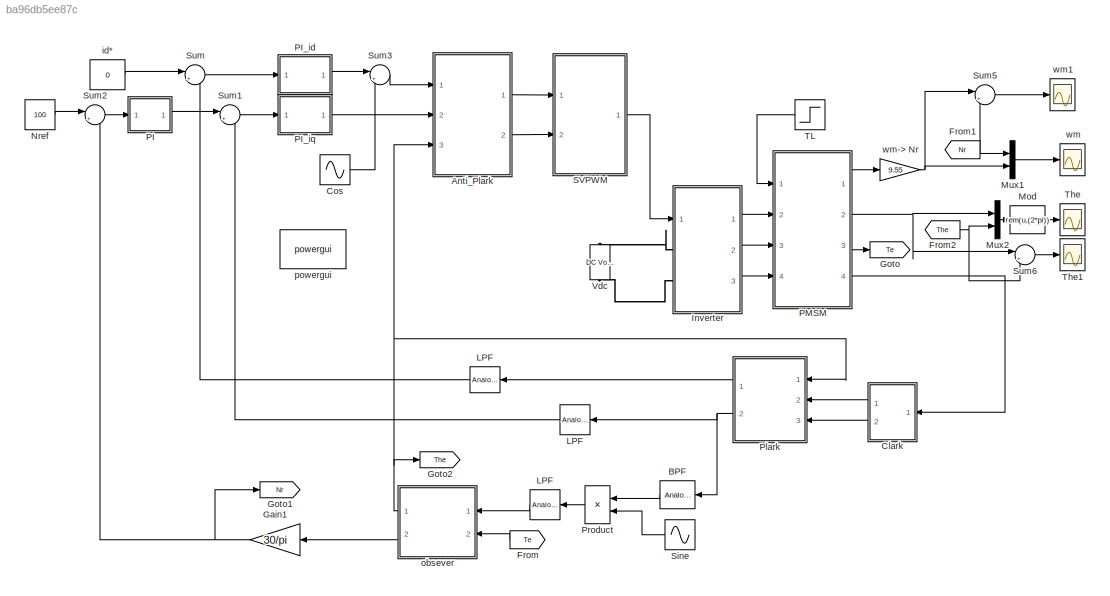
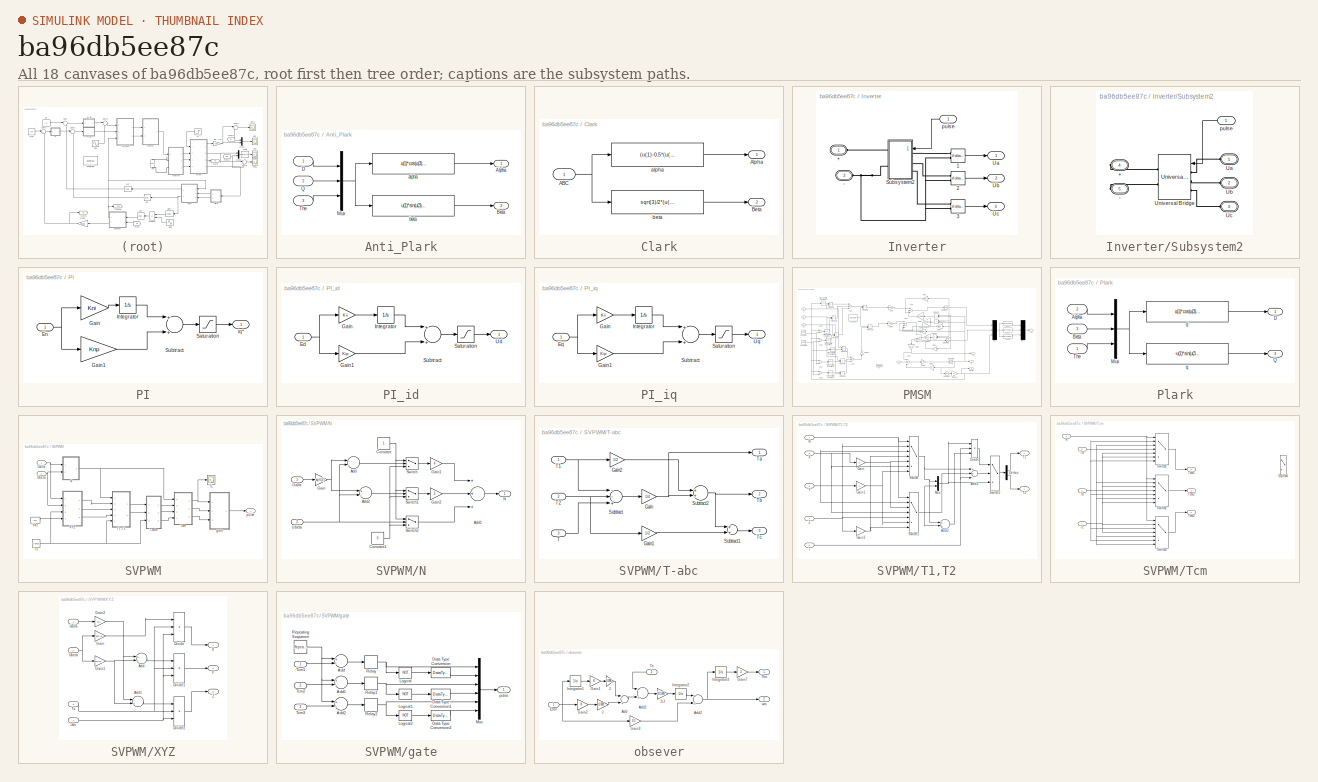
[diagram: thumbnail index - all 18 canvases of the model, root first then tree order]
MODEL slx_ba96db5ee87c
KIND model
BLOCK [Reference]  LPF  REF=dsparch4/Analog
Filter Design
  N = 1
  Ports = [1, 1]
  Rp = 2
  Rs = 40
  SourceBlock = dsparch4/Analog\nFilter Design
  SourceType = Analog Filter Design
  Whi = 80
  Wlo = 942
  filttype = Lowpass
  method = Butterworth
BLOCK [SubSystem] Anti_Plark
  Ports = [3, 2]
  RequestExecContextInheritance = off
BLOCK [Outport] Anti_Plark/Alpha
  IconDisplay = Port number
BLOCK [Outport] Anti_Plark/Beta
  IconDisplay = Port number
  Port = 2
BLOCK [Inport] Anti_Plark/D
  IconDisplay = Port number
BLOCK [Mux] Anti_Plark/Mux
  DisplayOption = bar
  Inputs = 3
  Ports = [3, 1]
BLOCK [Inport] Anti_Plark/Q
  IconDisplay = Port number
  Port = 2
BLOCK [Inport] Anti_Plark/The
  IconDisplay = Port number
  Port = 3
BLOCK [Fcn] Anti_Plark/alpha
  Expr = u(1)*cos(u(3))-u(2)*sin(u(3))
BLOCK [Fcn] Anti_Plark/beta
  Expr = u(1)*sin(u(3))+u(2)*cos(u(3))
BLOCK [Reference] BPF  REF=dsparch4/Analog
Filter Design
  N = 2
  Ports = [1, 1]
  Rp = 2
  Rs = 40
  SourceBlock = dsparch4/Analog\nFilter Design
  SourceType = Analog Filter Design
  Whi = 6360
  Wlo = 6200
  filttype = Bandpass
  method = Butterworth
BLOCK [SubSystem] Clark
  Ports = [1, 2]
  RequestExecContextInheritance = off
BLOCK [Inport] Clark/ABC
  IconDisplay = Port number
BLOCK [Outport] Clark/Alpha
  IconDisplay = Port number
BLOCK [Outport] Clark/Beta
  IconDisplay = Port number
  Port = 2
BLOCK [Fcn] Clark/alpha
  Expr = (u(1)-0.5*(u(2)+u(3)))*2/3
BLOCK [Fcn] Clark/beta
  Expr = sqrt(3)/2*(u(2)-u(3))*2/3
BLOCK [Sin] Cos
  Amplitude = 20
  Frequency = 6280
  Phase = pi/2
  Ports = [0, 1]
  SampleTime = 0
BLOCK [From] From
  GotoTag = Te
BLOCK [From] From1
  GotoTag = Nr
BLOCK [From] From2
  GotoTag = The
BLOCK [Gain] Gain1
  Gain = 30/pi
  OutDataTypeStr = Inherit: Inherit via internal rule
  ParamDataTypeStr = Inherit: Inherit via internal rule
  SaturateOnIntegerOverflow = off
BLOCK [Goto] Goto
  GotoTag = Te
BLOCK [Goto] Goto1
  GotoTag = Nr
BLOCK [Goto] Goto2
  GotoTag = The
BLOCK [SubSystem] Inverter
  Ports = [1, 3, 0, 0, 0, 2]
  RequestExecContextInheritance = off
BLOCK [PMIOPort] Inverter/+
  Port = 1
  Side = Left
  Tag = PMCPort
BLOCK [PMIOPort] Inverter/-
  Port = 2
  Side = Left
  Tag = PMCPort
BLOCK [Reference] Inverter/1  REF=powerlib/Measurements/Voltage Measurement
  OutputType = Complex
  PSBequivalent = 0
  PhasorSimulation = off
  Ports = [0, 1, 0, 0, 0, 2]
  SourceBlock = powerlib/Measurements/Voltage Measurement
  SourceType = Voltage Measurement
BLOCK [Reference] Inverter/2  REF=powerlib/Measurements/Voltage Measurement
  OutputType = Complex
  PSBequivalent = 0
  PhasorSimulation = off
  Ports = [0, 1, 0, 0, 0, 2]
  SourceBlock = powerlib/Measurements/Voltage Measurement
  SourceType = Voltage Measurement
BLOCK [Reference] Inverter/3  REF=powerlib/Measurements/Voltage Measurement
  OutputType = Complex
  PSBequivalent = 0
  PhasorSimulation = off
  Ports = [0, 1, 0, 0, 0, 2]
  SourceBlock = powerlib/Measurements/Voltage Measurement
  SourceType = Voltage Measurement
BLOCK [SubSystem] Inverter/Subsystem2
  Ports = [1, 0, 0, 0, 0, 3, 2]
  RequestExecContextInheritance = off
BLOCK [PMIOPort] Inverter/Subsystem2/+
  Port = 4
  Side = Right
  Tag = PMCPort
BLOCK [PMIOPort] Inverter/Subsystem2/-
  Port = 5
  Side = Right
  Tag = PMCPort
BLOCK [PMIOPort] Inverter/Subsystem2/Ua
  Port = 1
  Side = Left
  Tag = PMCPort
BLOCK [PMIOPort] Inverter/Subsystem2/Ub
  Port = 2
  Side = Left
  Tag = PMCPort
BLOCK [PMIOPort] Inverter/Subsystem2/Uc
  Port = 3
  Side = Left
  Tag = PMCPort
BLOCK [Reference] Inverter/Subsystem2/Universal Bridge  REF=powerlib/Power
Electronics/Universal Bridge
  Arms = 3
  Device = IGBT / Diodes
  ForwardVoltage = 0
  ForwardVoltages = [  0  0  ]
  GTOparameters = [ 10e-6 , 20e-6 ]
  IGBTparameters = [ 1e-6 , 2e-6 ]
  Lon = 0
  Measurements = None
  Measurements_2 = None
  Ports = [1, 0, 0, 0, 0, 3, 2]
  Ron = 1e-3
  SnubberCapacitance = inf
  SnubberResistance = 1e5
  SourceBlock = powerlib/Power\nElectronics/Universal Bridge
  SourceType = Universal Bridge
  converterType = Rectifier
BLOCK [Inport] Inverter/Subsystem2/pulse
  IconDisplay = Port number
BLOCK [Outport] Inverter/Ua
  IconDisplay = Port number
BLOCK [Outport] Inverter/Ub
  IconDisplay = Port number
  Port = 2
BLOCK [Outport] Inverter/Uc
  IconDisplay = Port number
  Port = 3
BLOCK [Inport] Inverter/pulse
  IconDisplay = Port number
BLOCK [Reference] LPF  REF=dsparch4/Analog
Filter Design
  N = 1
  Ports = [1, 1]
  Rp = 2
  Rs = 40
  SourceBlock = dsparch4/Analog\nFilter Design
  SourceType = Analog Filter Design
  Whi = 80
  Wlo = 942
  filttype = Lowpass
  method = Butterworth
BLOCK [Reference] LPF   REF=dsparch4/Analog
Filter Design
  N = 1
  Ports = [1, 1]
  Rp = 2
  Rs = 40
  SourceBlock = dsparch4/Analog\nFilter Design
  SourceType = Analog Filter Design
  Whi = 80
  Wlo = 942
  filttype = Lowpass
  method = Butterworth
BLOCK [Fcn] Mod
  Expr = rem(u,(2*pi))
BLOCK [Mux] Mux1
  DisplayOption = bar
  Inputs = 2
  Ports = [2, 1]
BLOCK [Mux] Mux2
  DisplayOption = bar
  Inputs = 2
  Ports = [2, 1]
BLOCK [Constant] Nref
  Value = 100
BLOCK [SubSystem] PI
  Ports = [1, 1]
  RequestExecContextInheritance = off
BLOCK [Inport] PI/En
  IconDisplay = Port number
BLOCK [Gain] PI/Gain
  Gain = Kni
  OutDataTypeStr = Inherit: Inherit via internal rule
  ParamDataTypeStr = Inherit: Inherit via internal rule
  SaturateOnIntegerOverflow = off
BLOCK [Gain] PI/Gain1
  Gain = Knp
  OutDataTypeStr = Inherit: Inherit via internal rule
  ParamDataTypeStr = Inherit: Inherit via internal rule
  SaturateOnIntegerOverflow = off
BLOCK [Integrator] PI/Integrator
  Ports = [1, 1]
BLOCK [Saturate] PI/Saturation
  InputPortMap = u0
  LowerLimit = -50
  Ports = [1, 1]
  UpperLimit = 50
BLOCK [Sum] PI/Subtract
  InputSameDT = off
  OutDataTypeStr = Inherit: Inherit via internal rule
  Ports = [2, 1]
  SaturateOnIntegerOverflow = off
BLOCK [Outport] PI/iq*
  IconDisplay = Port number
BLOCK [SubSystem] PI_id
  Ports = [1, 1]
  RequestExecContextInheritance = off
BLOCK [Inport] PI_id/Ed
  IconDisplay = Port number
BLOCK [Gain] PI_id/Gain
  Gain = Kii
  OutDataTypeStr = Inherit: Inherit via internal rule
  ParamDataTypeStr = Inherit: Inherit via internal rule
  SaturateOnIntegerOverflow = off
BLOCK [Gain] PI_id/Gain1
  Gain = Kip
  OutDataTypeStr = Inherit: Inherit via internal rule
  ParamDataTypeStr = Inherit: Inherit via internal rule
  SaturateOnIntegerOverflow = off
BLOCK [Integrator] PI_id/Integrator
  Ports = [1, 1]
BLOCK [Saturate] PI_id/Saturation
  InputPortMap = u0
  LowerLimit = -10
  Ports = [1, 1]
  UpperLimit = 10
BLOCK [Sum] PI_id/Subtract
  InputSameDT = off
  OutDataTypeStr = Inherit: Inherit via internal rule
  Ports = [2, 1]
  SaturateOnIntegerOverflow = off
BLOCK [Outport] PI_id/Ud
  IconDisplay = Port number
BLOCK [SubSystem] PI_iq
  Ports = [1, 1]
  RequestExecContextInheritance = off
BLOCK [Inport] PI_iq/Eq
  IconDisplay = Port number
BLOCK [Gain] PI_iq/Gain
  Gain = Kii
  OutDataTypeStr = Inherit: Inherit via internal rule
  ParamDataTypeStr = Inherit: Inherit via internal rule
  SaturateOnIntegerOverflow = off
BLOCK [Gain] PI_iq/Gain1
  Gain = Kip
  OutDataTypeStr = Inherit: Inherit via internal rule
  ParamDataTypeStr = Inherit: Inherit via internal rule
  SaturateOnIntegerOverflow = off
BLOCK [Integrator] PI_iq/Integrator
  Ports = [1, 1]
BLOCK [Saturate] PI_iq/Saturation
  InputPortMap = u0
  LowerLimit = -100
  Ports = [1, 1]
  UpperLimit = 100
BLOCK [Sum] PI_iq/Subtract
  InputSameDT = off
  OutDataTypeStr = Inherit: Inherit via internal rule
  Ports = [2, 1]
  SaturateOnIntegerOverflow = off
BLOCK [Outport] PI_iq/Uq
  IconDisplay = Port number
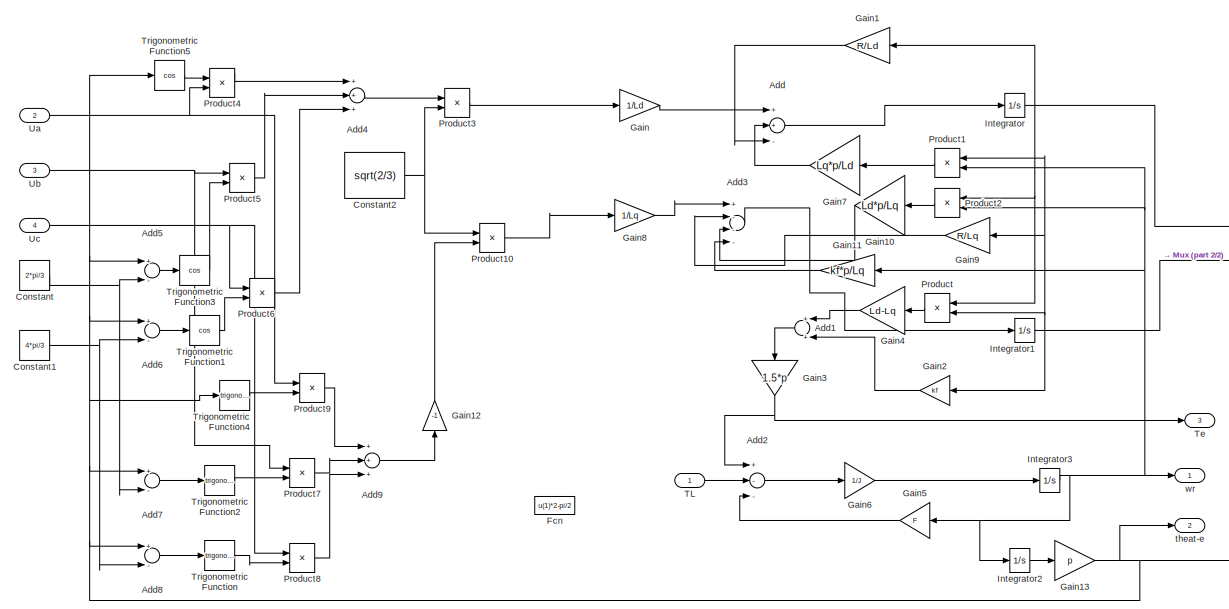
[diagram: PMSM - part 1/2, most of the canvas]
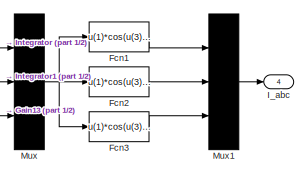
[diagram: PMSM - part 2/2, middle right region]
BLOCK [SubSystem] PMSM
  Ports = [4, 4]
  RequestExecContextInheritance = off
BLOCK [Sum] PMSM/Add
  InputSameDT = off
  Inputs = ++-
  OutDataTypeStr = Inherit: Inherit via internal rule
  Ports = [3, 1]
  SaturateOnIntegerOverflow = off
BLOCK [Sum] PMSM/Add1
  InputSameDT = off
  OutDataTypeStr = Inherit: Inherit via internal rule
  Ports = [2, 1]
  SaturateOnIntegerOverflow = off
BLOCK [Sum] PMSM/Add2
  InputSameDT = off
  Inputs = +--
  OutDataTypeStr = Inherit: Inherit via internal rule
  Ports = [3, 1]
  SaturateOnIntegerOverflow = off
BLOCK [Sum] PMSM/Add3
  InputSameDT = off
  Inputs = +---
  OutDataTypeStr = Inherit: Inherit via internal rule
  Ports = [4, 1]
  SaturateOnIntegerOverflow = off
BLOCK [Sum] PMSM/Add4
  InputSameDT = off
  Inputs = +++
  OutDataTypeStr = Inherit: Inherit via internal rule
  Ports = [3, 1]
  SaturateOnIntegerOverflow = off
BLOCK [Sum] PMSM/Add5
  InputSameDT = off
  Inputs = +-
  OutDataTypeStr = Inherit: Inherit via internal rule
  Ports = [2, 1]
  SaturateOnIntegerOverflow = off
BLOCK [Sum] PMSM/Add6
  InputSameDT = off
  Inputs = +-
  OutDataTypeStr = Inherit: Inherit via internal rule
  Ports = [2, 1]
  SaturateOnIntegerOverflow = off
BLOCK [Sum] PMSM/Add7
  InputSameDT = off
  Inputs = +-
  OutDataTypeStr = Inherit: Inherit via internal rule
  Ports = [2, 1]
  SaturateOnIntegerOverflow = off
BLOCK [Sum] PMSM/Add8
  InputSameDT = off
  Inputs = +-
  OutDataTypeStr = Inherit: Inherit via internal rule
  Ports = [2, 1]
  SaturateOnIntegerOverflow = off
BLOCK [Sum] PMSM/Add9
  InputSameDT = off
  Inputs = +++
  OutDataTypeStr = Inherit: Inherit via internal rule
  Ports = [3, 1]
  SaturateOnIntegerOverflow = off
BLOCK [Constant] PMSM/Constant
  Value = 2*pi/3
BLOCK [Constant] PMSM/Constant1
  Value = 4*pi/3
BLOCK [Constant] PMSM/Constant2
  Value = sqrt(2/3)
BLOCK [Fcn] PMSM/Fcn
  Expr = u(1)*2-pi/2
BLOCK [Fcn] PMSM/Fcn1
  Expr = u(1)*cos(u(3))-u(2)*sin(u(3))
BLOCK [Fcn] PMSM/Fcn2
  Expr = u(1)*cos(u(3)-((2*pi)/3))-u(2)*sin(u(3)-((2*pi)/3))
BLOCK [Fcn] PMSM/Fcn3
  Expr = u(1)*cos(u(3)-((4*pi)/3))-u(2)*sin(u(3)-((4*pi)/3))
BLOCK [Gain] PMSM/Gain
  Gain = 1/Ld
  OutDataTypeStr = Inherit: Inherit via internal rule
  ParamDataTypeStr = Inherit: Inherit via internal rule
  SaturateOnIntegerOverflow = off
BLOCK [Gain] PMSM/Gain1
  Gain = R/Ld
  OutDataTypeStr = Inherit: Inherit via internal rule
  ParamDataTypeStr = Inherit: Inherit via internal rule
  SaturateOnIntegerOverflow = off
BLOCK [Gain] PMSM/Gain10
  Gain = Ld*p/Lq
  OutDataTypeStr = Inherit: Inherit via internal rule
  ParamDataTypeStr = Inherit: Inherit via internal rule
  SaturateOnIntegerOverflow = off
BLOCK [Gain] PMSM/Gain11
  Gain = kf*p/Lq
  OutDataTypeStr = Inherit: Inherit via internal rule
  ParamDataTypeStr = Inherit: Inherit via internal rule
  SaturateOnIntegerOverflow = off
BLOCK [Gain] PMSM/Gain12
  Gain = -1
  OutDataTypeStr = Inherit: Inherit via internal rule
  ParamDataTypeStr = Inherit: Inherit via internal rule
  SaturateOnIntegerOverflow = off
BLOCK [Gain] PMSM/Gain13
  Gain = p
  OutDataTypeStr = Inherit: Inherit via internal rule
  ParamDataTypeStr = Inherit: Inherit via internal rule
  SaturateOnIntegerOverflow = off
BLOCK [Gain] PMSM/Gain2
  Gain = kf
  OutDataTypeStr = Inherit: Inherit via internal rule
  ParamDataTypeStr = Inherit: Inherit via internal rule
  SaturateOnIntegerOverflow = off
BLOCK [Gain] PMSM/Gain3
  Gain = 1.5*p
  OutDataTypeStr = Inherit: Inherit via internal rule
  ParamDataTypeStr = Inherit: Inherit via internal rule
  SaturateOnIntegerOverflow = off
BLOCK [Gain] PMSM/Gain4
  Gain = Ld-Lq
  OutDataTypeStr = Inherit: Inherit via internal rule
  ParamDataTypeStr = Inherit: Inherit via internal rule
  SaturateOnIntegerOverflow = off
BLOCK [Gain] PMSM/Gain5
  Gain = F
  OutDataTypeStr = Inherit: Inherit via internal rule
  ParamDataTypeStr = Inherit: Inherit via internal rule
  SaturateOnIntegerOverflow = off
BLOCK [Gain] PMSM/Gain6
  Gain = 1/J
  OutDataTypeStr = Inherit: Inherit via internal rule
  ParamDataTypeStr = Inherit: Inherit via internal rule
  SaturateOnIntegerOverflow = off
BLOCK [Gain] PMSM/Gain7
  Gain = Lq*p/Ld
  OutDataTypeStr = Inherit: Inherit via internal rule
  ParamDataTypeStr = Inherit: Inherit via internal rule
  SaturateOnIntegerOverflow = off
BLOCK [Gain] PMSM/Gain8
  Gain = 1/Lq
  OutDataTypeStr = Inherit: Inherit via internal rule
  ParamDataTypeStr = Inherit: Inherit via internal rule
  SaturateOnIntegerOverflow = off
BLOCK [Gain] PMSM/Gain9
  Gain = R/Lq
  OutDataTypeStr = Inherit: Inherit via internal rule
  ParamDataTypeStr = Inherit: Inherit via internal rule
  SaturateOnIntegerOverflow = off
BLOCK [Outport] PMSM/I_abc
  IconDisplay = Port number
  Port = 4
BLOCK [Integrator] PMSM/Integrator
  Ports = [1, 1]
BLOCK [Integrator] PMSM/Integrator1
  Ports = [1, 1]
BLOCK [Integrator] PMSM/Integrator2
  Ports = [1, 1]
BLOCK [Integrator] PMSM/Integrator3
  Ports = [1, 1]
BLOCK [Mux] PMSM/Mux
  Inputs = 3
  Ports = [3, 1]
BLOCK [Mux] PMSM/Mux1
  Inputs = 3
  Ports = [3, 1]
BLOCK [Product] PMSM/Product
  InputSameDT = off
  OutDataTypeStr = Inherit: Inherit via internal rule
  Ports = [2, 1]
  SaturateOnIntegerOverflow = off
BLOCK [Product] PMSM/Product1
  InputSameDT = off
  OutDataTypeStr = Inherit: Inherit via internal rule
  Ports = [2, 1]
  SaturateOnIntegerOverflow = off
BLOCK [Product] PMSM/Product10
  InputSameDT = off
  OutDataTypeStr = Inherit: Inherit via internal rule
  Ports = [2, 1]
  SaturateOnIntegerOverflow = off
BLOCK [Product] PMSM/Product2
  InputSameDT = off
  OutDataTypeStr = Inherit: Inherit via internal rule
  Ports = [2, 1]
  SaturateOnIntegerOverflow = off
BLOCK [Product] PMSM/Product3
  InputSameDT = off
  OutDataTypeStr = Inherit: Inherit via internal rule
  Ports = [2, 1]
  SaturateOnIntegerOverflow = off
BLOCK [Product] PMSM/Product4
  InputSameDT = off
  OutDataTypeStr = Inherit: Inherit via internal rule
  Ports = [2, 1]
  SaturateOnIntegerOverflow = off
BLOCK [Product] PMSM/Product5
  InputSameDT = off
  OutDataTypeStr = Inherit: Inherit via internal rule
  Ports = [2, 1]
  SaturateOnIntegerOverflow = off
BLOCK [Product] PMSM/Product6
  InputSameDT = off
  OutDataTypeStr = Inherit: Inherit via internal rule
  Ports = [2, 1]
  SaturateOnIntegerOverflow = off
BLOCK [Product] PMSM/Product7
  InputSameDT = off
  OutDataTypeStr = Inherit: Inherit via internal rule
  Ports = [2, 1]
  SaturateOnIntegerOverflow = off
BLOCK [Product] PMSM/Product8
  InputSameDT = off
  OutDataTypeStr = Inherit: Inherit via internal rule
  Ports = [2, 1]
  SaturateOnIntegerOverflow = off
BLOCK [Product] PMSM/Product9
  InputSameDT = off
  OutDataTypeStr = Inherit: Inherit via internal rule
  Ports = [2, 1]
  SaturateOnIntegerOverflow = off
BLOCK [Inport] PMSM/TL
  IconDisplay = Port number
BLOCK [Outport] PMSM/Te
  IconDisplay = Port number
  Port = 3
BLOCK [Trigonometry] PMSM/Trigonometric Function
  Ports = [1, 1]
BLOCK [Trigonometry] PMSM/Trigonometric Function1
  Operator = cos
  Ports = [1, 1]
BLOCK [Trigonometry] PMSM/Trigonometric Function2
  Ports = [1, 1]
BLOCK [Trigonometry] PMSM/Trigonometric Function3
  Operator = cos
  Ports = [1, 1]
BLOCK [Trigonometry] PMSM/Trigonometric Function4
  Ports = [1, 1]
BLOCK [Trigonometry] PMSM/Trigonometric Function5
  Operator = cos
  Ports = [1, 1]
BLOCK [Inport] PMSM/Ua
  IconDisplay = Port number
  Port = 2
BLOCK [Inport] PMSM/Ub
  IconDisplay = Port number
  Port = 3
BLOCK [Inport] PMSM/Uc
  IconDisplay = Port number
  Port = 4
BLOCK [Outport] PMSM/theat-e
  IconDisplay = Port number
  Port = 2
BLOCK [Outport] PMSM/wr
  IconDisplay = Port number
BLOCK [SubSystem] Plark
  Ports = [3, 2]
  RequestExecContextInheritance = off
BLOCK [Inport] Plark/Alpha
  IconDisplay = Port number
  Port = 2
BLOCK [Inport] Plark/Beta
  IconDisplay = Port number
  Port = 3
BLOCK [Outport] Plark/D
  IconDisplay = Port number
BLOCK [Mux] Plark/Mux
  DisplayOption = bar
  Inputs = 3
  Ports = [3, 1]
BLOCK [Outport] Plark/Q
  IconDisplay = Port number
  Port = 2
BLOCK [Inport] Plark/The
  IconDisplay = Port number
BLOCK [Fcn] Plark/d
  Expr = u(1)*cos(u(3))+u(2)*sin(u(3))
BLOCK [Fcn] Plark/q
  Expr = -u(1)*sin(u(3))+u(2)*cos(u(3))
BLOCK [Product] Product
  InputSameDT = off
  OutDataTypeStr = Inherit: Inherit via internal rule
  Ports = [2, 1]
  RndMeth = Floor
  SaturateOnIntegerOverflow = off
BLOCK [SubSystem] SVPWM
  Ports = [2, 1]
  RequestExecContextInheritance = off
BLOCK [SubSystem] SVPWM/N
  Ports = [2, 1]
  RequestExecContextInheritance = off
BLOCK [Sum] SVPWM/N/Add
  InputSameDT = off
  Inputs = --
  OutDataTypeStr = Inherit: Inherit via internal rule
  Ports = [2, 1]
  SaturateOnIntegerOverflow = off
BLOCK [Sum] SVPWM/N/Add1
  InputSameDT = off
  Inputs = +++
  OutDataTypeStr = Inherit: Inherit via internal rule
  Ports = [3, 1]
  SaturateOnIntegerOverflow = off
BLOCK [Sum] SVPWM/N/Add2
  InputSameDT = off
  Inputs = +-
  OutDataTypeStr = Inherit: Inherit via internal rule
  Ports = [2, 1]
  SaturateOnIntegerOverflow = off
BLOCK [Constant] SVPWM/N/Constant
BLOCK [Constant] SVPWM/N/Constant1
  Value = 0
BLOCK [Gain] SVPWM/N/Gain
  Gain = sqrt(3)
  OutDataTypeStr = Inherit: Inherit via internal rule
  ParamDataTypeStr = Inherit: Inherit via internal rule
  SaturateOnIntegerOverflow = off
BLOCK [Gain] SVPWM/N/Gain1
  Gain = 4
  OutDataTypeStr = Inherit: Inherit via internal rule
  ParamDataTypeStr = Inherit: Inherit via internal rule
  SaturateOnIntegerOverflow = off
BLOCK [Gain] SVPWM/N/Gain2
  Gain = 2
  OutDataTypeStr = Inherit: Inherit via internal rule
  ParamDataTypeStr = Inherit: Inherit via internal rule
  SaturateOnIntegerOverflow = off
BLOCK [Outport] SVPWM/N/N
  IconDisplay = Port number
BLOCK [Switch] SVPWM/N/Switch
  InputSameDT = off
  SaturateOnIntegerOverflow = off
BLOCK [Switch] SVPWM/N/Switch1
  InputSameDT = off
  SaturateOnIntegerOverflow = off
BLOCK [Switch] SVPWM/N/Switch2
  InputSameDT = off
  SaturateOnIntegerOverflow = off
BLOCK [Inport] SVPWM/N/Ualfa
  IconDisplay = Port number
BLOCK [Inport] SVPWM/N/Ubeta
  IconDisplay = Port number
  Port = 2
BLOCK [SubSystem] SVPWM/T-abc
  Ports = [3, 3]
  RequestExecContextInheritance = off
BLOCK [Gain] SVPWM/T-abc/Gain
  Gain = 1/4
  OutDataTypeStr = Inherit: Inherit via internal rule
  ParamDataTypeStr = Inherit: Inherit via internal rule
  SaturateOnIntegerOverflow = off
BLOCK [Gain] SVPWM/T-abc/Gain1
  Gain = 1/2
  OutDataTypeStr = Inherit: Inherit via internal rule
  ParamDataTypeStr = Inherit: Inherit via internal rule
  SaturateOnIntegerOverflow = off
BLOCK [Gain] SVPWM/T-abc/Gain2
  Gain = 1/2
  OutDataTypeStr = Inherit: Inherit via internal rule
  ParamDataTypeStr = Inherit: Inherit via internal rule
  SaturateOnIntegerOverflow = off
BLOCK [Sum] SVPWM/T-abc/Subtract
  InputSameDT = off
  Inputs = --+
  OutDataTypeStr = Inherit: Inherit via internal rule
  Ports = [3, 1]
  SaturateOnIntegerOverflow = off
BLOCK [Sum] SVPWM/T-abc/Subtract1
  InputSameDT = off
  OutDataTypeStr = Inherit: Inherit via internal rule
  Ports = [2, 1]
  SaturateOnIntegerOverflow = off
BLOCK [Sum] SVPWM/T-abc/Subtract2
  InputSameDT = off
  OutDataTypeStr = Inherit: Inherit via internal rule
  Ports = [2, 1]
  SaturateOnIntegerOverflow = off
BLOCK [Inport] SVPWM/T-abc/T
  IconDisplay = Port number
  Port = 3
BLOCK [Inport] SVPWM/T-abc/T1
  IconDisplay = Port number
BLOCK [Inport] SVPWM/T-abc/T2
  IconDisplay = Port number
  Port = 2
BLOCK [Outport] SVPWM/T-abc/Ta
  IconDisplay = Port number
BLOCK [Outport] SVPWM/T-abc/Tb
  IconDisplay = Port number
  Port = 2
BLOCK [Outport] SVPWM/T-abc/Tc
  IconDisplay = Port number
  Port = 3
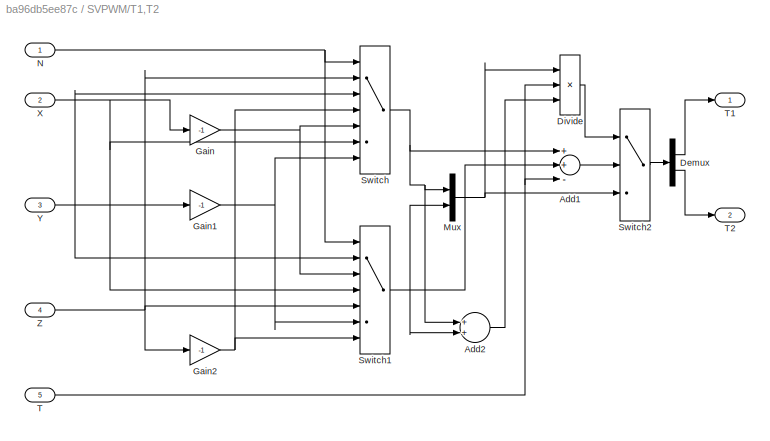
BLOCK [SubSystem] SVPWM/T1,T2
  Ports = [5, 2]
  RequestExecContextInheritance = off
BLOCK [Sum] SVPWM/T1,T2/Add1
  InputSameDT = off
  Inputs = ++-
  OutDataTypeStr = Inherit: Inherit via internal rule
  Ports = [3, 1]
  SaturateOnIntegerOverflow = off
BLOCK [Sum] SVPWM/T1,T2/Add2
  InputSameDT = off
  OutDataTypeStr = Inherit: Inherit via internal rule
  Ports = [2, 1]
  SaturateOnIntegerOverflow = off
BLOCK [Demux] SVPWM/T1,T2/Demux
  DisplayOption = bar
  Outputs = 2
  Ports = [1, 2]
BLOCK [Product] SVPWM/T1,T2/Divide
  InputSameDT = off
  Inputs = **/
  OutDataTypeStr = Inherit: Inherit via internal rule
  Ports = [3, 1]
  RndMeth = Floor
  SaturateOnIntegerOverflow = off
BLOCK [Gain] SVPWM/T1,T2/Gain
  Gain = -1
  OutDataTypeStr = Inherit: Inherit via internal rule
  ParamDataTypeStr = Inherit: Inherit via internal rule
  SaturateOnIntegerOverflow = off
BLOCK [Gain] SVPWM/T1,T2/Gain1
  Gain = -1
  OutDataTypeStr = Inherit: Inherit via internal rule
  ParamDataTypeStr = Inherit: Inherit via internal rule
  SaturateOnIntegerOverflow = off
BLOCK [Gain] SVPWM/T1,T2/Gain2
  Gain = -1
  OutDataTypeStr = Inherit: Inherit via internal rule
  ParamDataTypeStr = Inherit: Inherit via internal rule
  SaturateOnIntegerOverflow = off
BLOCK [Mux] SVPWM/T1,T2/Mux
  DisplayOption = bar
  Inputs = 2
  Ports = [2, 1]
BLOCK [Inport] SVPWM/T1,T2/N
  IconDisplay = Port number
BLOCK [MultiPortSwitch] SVPWM/T1,T2/Switch
  InputSameDT = off
  Inputs = 6
  Ports = [7, 1]
  SaturateOnIntegerOverflow = off
BLOCK [MultiPortSwitch] SVPWM/T1,T2/Switch1
  InputSameDT = off
  Inputs = 6
  Ports = [7, 1]
  SaturateOnIntegerOverflow = off
BLOCK [Switch] SVPWM/T1,T2/Switch2
  InputSameDT = off
  SaturateOnIntegerOverflow = off
BLOCK [Inport] SVPWM/T1,T2/T
  IconDisplay = Port number
  Port = 5
BLOCK [Outport] SVPWM/T1,T2/T1
  IconDisplay = Port number
BLOCK [Outport] SVPWM/T1,T2/T2
  IconDisplay = Port number
  Port = 2
BLOCK [Inport] SVPWM/T1,T2/X
  IconDisplay = Port number
  Port = 2
BLOCK [Inport] SVPWM/T1,T2/Y
  IconDisplay = Port number
  Port = 3
BLOCK [Inport] SVPWM/T1,T2/Z
  IconDisplay = Port number
  Port = 4
BLOCK [Scope] SVPWM/TL
  DataFormat = StructureWithTime
  Floating = off
  LimitDataPoints = off
  NumInputPorts = 1
  Ports = [1]
  SampleTime = 0
  SaveName = ScopeData12
  ShowLegends = off
  YMax = 6.5e-005
  YMin = 3.5e-005
  ZoomMode = yonly
BLOCK [SubSystem] SVPWM/Tcm
  Ports = [4, 3]
  RequestExecContextInheritance = off
BLOCK [Inport] SVPWM/Tcm/N
  IconDisplay = Port number
BLOCK [MultiPortSwitch] SVPWM/Tcm/Switch1
  InputSameDT = off
  Inputs = 6
  Ports = [7, 1]
  SaturateOnIntegerOverflow = off
BLOCK [MultiPortSwitch] SVPWM/Tcm/Switch2
  InputSameDT = off
  Inputs = 6
  Ports = [7, 1]
  SaturateOnIntegerOverflow = off
BLOCK [MultiPortSwitch] SVPWM/Tcm/Switch3
  InputSameDT = off
  Inputs = 6
  Ports = [7, 1]
  SaturateOnIntegerOverflow = off
BLOCK [Switch] SVPWM/Tcm/Switch4
  InputSameDT = off
  SaturateOnIntegerOverflow = off
BLOCK [Inport] SVPWM/Tcm/Ta
  IconDisplay = Port number
  Port = 2
BLOCK [Inport] SVPWM/Tcm/Tb
  IconDisplay = Port number
  Port = 3
BLOCK [Inport] SVPWM/Tcm/Tc
  IconDisplay = Port number
  Port = 4
BLOCK [Outport] SVPWM/Tcm/Tcm1
  IconDisplay = Port number
BLOCK [Outport] SVPWM/Tcm/Tcm2
  IconDisplay = Port number
  Port = 2
BLOCK [Outport] SVPWM/Tcm/Tcm3
  IconDisplay = Port number
  Port = 3
BLOCK [Constant] SVPWM/Ts
  SampleTime = -1
  Value = 0.0002
BLOCK [Inport] SVPWM/Ualfa
  IconDisplay = Port number
BLOCK [Inport] SVPWM/Ubeta
  IconDisplay = Port number
  Port = 2
BLOCK [Constant] SVPWM/Vdc
  Value = 311
BLOCK [SubSystem] SVPWM/XYZ
  Ports = [4, 3]
  RequestExecContextInheritance = off
BLOCK [Sum] SVPWM/XYZ/Add
  InputSameDT = off
  OutDataTypeStr = Inherit: Inherit via internal rule
  Ports = [2, 1]
  SaturateOnIntegerOverflow = off
BLOCK [Sum] SVPWM/XYZ/Add1
  InputSameDT = off
  Inputs = -+
  OutDataTypeStr = Inherit: Inherit via internal rule
  Ports = [2, 1]
  SaturateOnIntegerOverflow = off
BLOCK [Product] SVPWM/XYZ/Divide
  InputSameDT = off
  Inputs = **/
  OutDataTypeStr = Inherit: Inherit via internal rule
  Ports = [3, 1]
  RndMeth = Floor
  SaturateOnIntegerOverflow = off
BLOCK [Product] SVPWM/XYZ/Divide1
  InputSameDT = off
  Inputs = **/
  OutDataTypeStr = Inherit: Inherit via internal rule
  Ports = [3, 1]
  RndMeth = Floor
  SaturateOnIntegerOverflow = off
BLOCK [Product] SVPWM/XYZ/Divide2
  InputSameDT = off
  Inputs = **/
  OutDataTypeStr = Inherit: Inherit via internal rule
  Ports = [3, 1]
  RndMeth = Floor
  SaturateOnIntegerOverflow = off
BLOCK [Gain] SVPWM/XYZ/Gain
  Gain = sqrt(3)
  OutDataTypeStr = Inherit: Inherit via internal rule
  ParamDataTypeStr = Inherit: Inherit via internal rule
  SaturateOnIntegerOverflow = off
BLOCK [Gain] SVPWM/XYZ/Gain1
  Gain = sqrt(3)/2
  OutDataTypeStr = Inherit: Inherit via internal rule
  ParamDataTypeStr = Inherit: Inherit via internal rule
  SaturateOnIntegerOverflow = off
BLOCK [Gain] SVPWM/XYZ/Gain2
  Gain = 3/2
  OutDataTypeStr = Inherit: Inherit via internal rule
  ParamDataTypeStr = Inherit: Inherit via internal rule
  SaturateOnIntegerOverflow = off
BLOCK [Inport] SVPWM/XYZ/Ts
  IconDisplay = Port number
  Port = 3
BLOCK [Inport] SVPWM/XYZ/Ualfa
  IconDisplay = Port number
BLOCK [Inport] SVPWM/XYZ/Ubeta
  IconDisplay = Port number
  Port = 2
BLOCK [Inport] SVPWM/XYZ/Udc
  IconDisplay = Port number
  Port = 4
BLOCK [Outport] SVPWM/XYZ/X
  IconDisplay = Port number
BLOCK [Outport] SVPWM/XYZ/Y
  IconDisplay = Port number
  Port = 2
BLOCK [Outport] SVPWM/XYZ/Z
  IconDisplay = Port number
  Port = 3
BLOCK [SubSystem] SVPWM/gate
  Ports = [3, 1]
  RequestExecContextInheritance = off
BLOCK [Sum] SVPWM/gate/Add
  InputSameDT = off
  Inputs = +-
  OutDataTypeStr = Inherit: Inherit via internal rule
  Ports = [2, 1]
  SaturateOnIntegerOverflow = off
BLOCK [Sum] SVPWM/gate/Add1
  InputSameDT = off
  Inputs = +-
  OutDataTypeStr = Inherit: Inherit via internal rule
  Ports = [2, 1]
  SaturateOnIntegerOverflow = off
BLOCK [Sum] SVPWM/gate/Add2
  InputSameDT = off
  Inputs = +-
  OutDataTypeStr = Inherit: Inherit via internal rule
  Ports = [2, 1]
  SaturateOnIntegerOverflow = off
BLOCK [DataTypeConversion] SVPWM/gate/Data Type Conversion
  OutDataTypeStr = double
  RndMeth = Floor
  SaturateOnIntegerOverflow = off
BLOCK [DataTypeConversion] SVPWM/gate/Data Type Conversion1
  OutDataTypeStr = double
  RndMeth = Floor
  SaturateOnIntegerOverflow = off
BLOCK [DataTypeConversion] SVPWM/gate/Data Type Conversion2
  OutDataTypeStr = double
  RndMeth = Floor
  SaturateOnIntegerOverflow = off
BLOCK [Logic] SVPWM/gate/Logical
  AllPortsSameDT = off
  Operator = NOT
  OutDataTypeStr = boolean
  Ports = [1, 1]
BLOCK [Logic] SVPWM/gate/Logical1
  AllPortsSameDT = off
  Operator = NOT
  OutDataTypeStr = boolean
  Ports = [1, 1]
BLOCK [Logic] SVPWM/gate/Logical2
  AllPortsSameDT = off
  Operator = NOT
  OutDataTypeStr = boolean
  Ports = [1, 1]
BLOCK [Mux] SVPWM/gate/Mux
  DisplayOption = bar
  Inputs = 6
  Ports = [6, 1]
BLOCK [Relay] SVPWM/gate/Relay
BLOCK [Relay] SVPWM/gate/Relay1
BLOCK [Relay] SVPWM/gate/Relay2
BLOCK [Reference] SVPWM/gate/Repeating Sequence  REF=simulink/Sources/Repeating
Sequence
  Ports = [0, 1]
  SourceBlock = simulink/Sources/Repeating\nSequence
  SourceType = Repeating table
  rep_seq_t = [0 0.00005 0.0001]
  rep_seq_y = [0 0.0001 0]
BLOCK [Inport] SVPWM/gate/Tcm1
  IconDisplay = Port number
BLOCK [Inport] SVPWM/gate/Tcm2
  IconDisplay = Port number
  Port = 2
BLOCK [Inport] SVPWM/gate/Tcm3
  IconDisplay = Port number
  Port = 3
BLOCK [Outport] SVPWM/gate/pulse
  IconDisplay = Port number
BLOCK [Outport] SVPWM/pulse
  IconDisplay = Port number
BLOCK [Sin] Sine 
  Frequency = 6280
  Ports = [0, 1]
  SampleTime = 0
BLOCK [Sum] Sum
  IconShape = round
  InputSameDT = off
  Inputs = |+-
  OutDataTypeStr = Inherit: Inherit via internal rule
  Ports = [2, 1]
  SaturateOnIntegerOverflow = off
BLOCK [Sum] Sum1
  IconShape = round
  InputSameDT = off
  Inputs = |+-
  OutDataTypeStr = Inherit: Inherit via internal rule
  Ports = [2, 1]
  SaturateOnIntegerOverflow = off
BLOCK [Sum] Sum2
  IconShape = round
  InputSameDT = off
  Inputs = |+-
  OutDataTypeStr = Inherit: Inherit via internal rule
  Ports = [2, 1]
  SaturateOnIntegerOverflow = off
BLOCK [Sum] Sum3
  IconShape = round
  InputSameDT = off
  Inputs = |++
  OutDataTypeStr = Inherit: Inherit via internal rule
  Ports = [2, 1]
  SaturateOnIntegerOverflow = off
BLOCK [Sum] Sum5
  IconShape = round
  InputSameDT = off
  Inputs = |+-
  OutDataTypeStr = Inherit: Inherit via internal rule
  Ports = [2, 1]
  SaturateOnIntegerOverflow = off
BLOCK [Sum] Sum6
  IconShape = round
  InputSameDT = off
  Inputs = |+-
  OutDataTypeStr = Inherit: Inherit via internal rule
  Ports = [2, 1]
  SaturateOnIntegerOverflow = off
BLOCK [Step] TL
  After = 0
  SampleTime = 0
  Time = 0.05
BLOCK [Scope] The
  DataFormat = StructureWithTime
  Floating = off
  LimitDataPoints = off
  NumInputPorts = 1
  Ports = [1]
  SampleTime = 0
  SaveName = The
  SaveToWorkspace = on
  ShowLegends = off
  YMax = 4
  YMin = 0
  ZoomMode = yonly
BLOCK [Scope] The1
  DataFormat = StructureWithTime
  Floating = off
  LimitDataPoints = off
  NumInputPorts = 1
  Ports = [1]
  SampleTime = 0
  SaveName = The1
  SaveToWorkspace = on
  ShowLegends = off
  YMax = 0.00016
  YMin = -2e-05
  ZoomMode = yonly
BLOCK [Reference] Vdc   REF=powerlib/Electrical
Sources/DC Voltage Source
  Amplitude = 311
  Measurements = None
  Ports = [0, 0, 0, 0, 0, 1, 1]
  SourceBlock = powerlib/Electrical\nSources/DC Voltage Source
  SourceType = DC Voltage Source
BLOCK [Constant] id*
  Value = 0
BLOCK [SubSystem] obsever
  Ports = [2, 2]
  RequestExecContextInheritance = off
BLOCK [Gain] obsever/1//J
  Gain = 1/0.008
  OutDataTypeStr = Inherit: Inherit via internal rule
  ParamDataTypeStr = Inherit: Inherit via internal rule
  SaturateOnIntegerOverflow = off
BLOCK [Sum] obsever/Add
  InputSameDT = off
  OutDataTypeStr = Inherit: Inherit via internal rule
  Ports = [2, 1]
  SaturateOnIntegerOverflow = off
BLOCK [Sum] obsever/Add1
  InputSameDT = off
  OutDataTypeStr = Inherit: Inherit via internal rule
  Ports = [2, 1]
  SaturateOnIntegerOverflow = off
BLOCK [Sum] obsever/Add2
  InputSameDT = off
  OutDataTypeStr = Inherit: Inherit via internal rule
  Ports = [2, 1]
  SaturateOnIntegerOverflow = off
BLOCK [Inport] obsever/Error
  IconDisplay = Port number
BLOCK [Gain] obsever/Gain1
  OutDataTypeStr = Inherit: Inherit via internal rule
  ParamDataTypeStr = Inherit: Inherit via internal rule
  SaturateOnIntegerOverflow = off
BLOCK [Gain] obsever/Gain2
  OutDataTypeStr = Inherit: Inherit via internal rule
  ParamDataTypeStr = Inherit: Inherit via internal rule
  SaturateOnIntegerOverflow = off
BLOCK [Gain] obsever/Gain3
  Gain = 0.1
  OutDataTypeStr = Inherit: Inherit via internal rule
  ParamDataTypeStr = Inherit: Inherit via internal rule
  SaturateOnIntegerOverflow = off
BLOCK [Gain] obsever/Gain7
  Gain = 2
  OutDataTypeStr = Inherit: Inherit via internal rule
  ParamDataTypeStr = Inherit: Inherit via internal rule
  SaturateOnIntegerOverflow = off
BLOCK [Integrator] obsever/Integrator1
  Ports = [1, 1]
BLOCK [Integrator] obsever/Integrator2
  Ports = [1, 1]
BLOCK [Integrator] obsever/Integrator3
  Ports = [1, 1]
BLOCK [Gain] obsever/J
  Gain = 0.008
  OutDataTypeStr = Inherit: Inherit via internal rule
  ParamDataTypeStr = Inherit: Inherit via internal rule
  SaturateOnIntegerOverflow = off
BLOCK [Gain] obsever/J 
  Gain = 0.008
  OutDataTypeStr = Inherit: Inherit via internal rule
  ParamDataTypeStr = Inherit: Inherit via internal rule
  SaturateOnIntegerOverflow = off
BLOCK [Inport] obsever/Te
  IconDisplay = Port number
  Port = 2
BLOCK [Outport] obsever/The
  IconDisplay = Port number
BLOCK [Outport] obsever/wm
  IconDisplay = Port number
  Port = 2
BLOCK [Reference] powergui  REF=powerlib/powergui
  DisableRonSwitches = off
  DisableSnubberDevices = off
  DisableVfSwitches = off
  DisplayEquations = off
  DisplayStyle = 1
  EnableUseOfTLC = off
  ErrMax = 1e-4
  Frange = [0:2:500]
  FreqAxis = off
  FunctionMessages = off
  HookPort = off
  Interpol = off
  Iterations = 50
  MaxFrequency = 1000
  Pbase = 100e6
  Ports = []
  Priority = 1
  ResistiveCurrentMeasurement = off
  RestoreLinks = warning
  RmsSteady = 1
  SPID = off
  SampleTime = 50e-6
  ShowGrid = off
  SolverType = Tustin/Backward Euler (TBE)
  SourceBlock = powerlib/powergui
  SourceType = PSB option menu block
  StartTime = 0.0
  SwTol = 0
  Ts = 100
  UnitsV = kV
  UnitsW = MW
  UserDataPersistent = on
  Xlog = on
  Ylog = off
  ZoomFFT = off
  cycles = 1
  display = off
  echomessages = off
  frequency = 60
  frequencyindice = 0
  frequencyindicesteady = 1
  fundamental = 60
  methode = off
  save = off
  structure = 0
  variable = ZData
  x0status = blocks
BLOCK [Scope] wm
  DataFormat = StructureWithTime
  Floating = off
  LimitDataPoints = off
  NumInputPorts = 1
  Ports = [1]
  SampleTime = 0
  SaveName = wm
  SaveToWorkspace = on
  ShowLegends = off
  YMax = 140
  YMin = 0
  ZoomMode = yonly
BLOCK [Gain] wm-> Nr
  Gain = 9.55
  OutDataTypeStr = Inherit: Inherit via internal rule
  ParamDataTypeStr = Inherit: Inherit via internal rule
  SaturateOnIntegerOverflow = off
BLOCK [Scope] wm1
  DataFormat = StructureWithTime
  Floating = off
  LimitDataPoints = off
  NumInputPorts = 1
  Ports = [1]
  SampleTime = 0
  SaveName = wm1
  SaveToWorkspace = on
  ShowLegends = off
  YMax = 0.03
  YMin = -0.005
  ZoomMode = yonly
LINE  LPF:1 -> obsever:1
LINE Anti_Plark/D:1 -> Anti_Plark/Mux:1
NET Anti_Plark/Mux:1 -> Anti_Plark/alpha:1, Anti_Plark/beta:1
LINE Anti_Plark/Q:1 -> Anti_Plark/Mux:2
LINE Anti_Plark/The:1 -> Anti_Plark/Mux:3
LINE Anti_Plark/alpha:1 -> Anti_Plark/Alpha:1
LINE Anti_Plark/beta:1 -> Anti_Plark/Beta:1
LINE Anti_Plark:1 -> SVPWM:1
LINE Anti_Plark:2 -> SVPWM:2
LINE BPF:1 -> Product:1
NET Clark/ABC:1 -> Clark/alpha:1, Clark/beta:1
LINE Clark/alpha:1 -> Clark/Alpha:1
LINE Clark/beta:1 -> Clark/Beta:1
LINE Clark:1 -> Plark:2
LINE Clark:2 -> Plark:3
LINE Cos:1 -> Sum3:2
NET From1:1 -> Mux1:1, Sum5:2
NET From2:1 -> Mux2:2, Sum6:2
LINE From:1 -> obsever:2
NET Gain1:1 -> Goto1:1, Sum2:2
LINE Inverter/1:1 -> Inverter/Ua:1
LINE Inverter/2:1 -> Inverter/Ub:1
LINE Inverter/3:1 -> Inverter/Uc:1
LINE Inverter/Subsystem2/pulse:1 -> Inverter/Subsystem2/Universal Bridge:1
LINE Inverter/pulse:1 -> Inverter/Subsystem2:1
LINE Inverter:1 -> PMSM:2
LINE Inverter:2 -> PMSM:3
LINE Inverter:3 -> PMSM:4
LINE LPF :1 -> Sum1:2
LINE LPF:1 -> Sum:2
LINE Mod:1 -> The:1
LINE Mux1:1 -> wm:1
LINE Mux2:1 -> Mod:1
LINE Nref:1 -> Sum2:1
NET PI/En:1 -> PI/Gain1:1, PI/Gain:1
LINE PI/Gain1:1 -> PI/Subtract:2
LINE PI/Gain:1 -> PI/Integrator:1
LINE PI/Integrator:1 -> PI/Subtract:1
LINE PI/Saturation:1 -> PI/iq*:1
LINE PI/Subtract:1 -> PI/Saturation:1
LINE PI:1 -> Sum1:1
NET PI_id/Ed:1 -> PI_id/Gain1:1, PI_id/Gain:1
LINE PI_id/Gain1:1 -> PI_id/Subtract:2
LINE PI_id/Gain:1 -> PI_id/Integrator:1
LINE PI_id/Integrator:1 -> PI_id/Subtract:1
LINE PI_id/Saturation:1 -> PI_id/Ud:1
LINE PI_id/Subtract:1 -> PI_id/Saturation:1
LINE PI_id:1 -> Sum3:1
NET PI_iq/Eq:1 -> PI_iq/Gain1:1, PI_iq/Gain:1
LINE PI_iq/Gain1:1 -> PI_iq/Subtract:2
LINE PI_iq/Gain:1 -> PI_iq/Integrator:1
LINE PI_iq/Integrator:1 -> PI_iq/Subtract:1
LINE PI_iq/Saturation:1 -> PI_iq/Uq:1
LINE PI_iq/Subtract:1 -> PI_iq/Saturation:1
LINE PI_iq:1 -> Anti_Plark:2
LINE PMSM/Add1:1 -> PMSM/Gain3:1
LINE PMSM/Add2:1 -> PMSM/Gain6:1
LINE PMSM/Add3:1 -> PMSM/Integrator1:1
LINE PMSM/Add4:1 -> PMSM/Product3:1
LINE PMSM/Add5:1 -> PMSM/Trigonometric Function3:1
LINE PMSM/Add6:1 -> PMSM/Trigonometric Function1:1
LINE PMSM/Add7:1 -> PMSM/Trigonometric Function2:1
LINE PMSM/Add8:1 -> PMSM/Trigonometric Function:1
LINE PMSM/Add9:1 -> PMSM/Gain12:1
LINE PMSM/Add:1 -> PMSM/Integrator:1
NET PMSM/Constant1:1 -> PMSM/Add6:2, PMSM/Add8:2
NET PMSM/Constant2:1 -> PMSM/Product10:1, PMSM/Product3:2
NET PMSM/Constant:1 -> PMSM/Add5:2, PMSM/Add7:2
LINE PMSM/Fcn1:1 -> PMSM/Mux1:1
LINE PMSM/Fcn2:1 -> PMSM/Mux1:2
LINE PMSM/Fcn3:1 -> PMSM/Mux1:3
LINE PMSM/Gain10:1 -> PMSM/Add3:3
LINE PMSM/Gain11:1 -> PMSM/Add3:4
LINE PMSM/Gain12:1 -> PMSM/Product10:2
NET PMSM/Gain13:1 -> PMSM/Add5:1, PMSM/Add6:1, PMSM/Add7:1, PMSM/Add8:1, PMSM/Mux:3, PMSM/Trigonometric Function4:1, PMSM/Trigonometric Function5:1, PMSM/theat-e:1
LINE PMSM/Gain1:1 -> PMSM/Add:3
LINE PMSM/Gain2:1 -> PMSM/Add1:2
NET PMSM/Gain3:1 -> PMSM/Add2:1, PMSM/Te:1
LINE PMSM/Gain4:1 -> PMSM/Add1:1
LINE PMSM/Gain5:1 -> PMSM/Add2:3
LINE PMSM/Gain6:1 -> PMSM/Integrator3:1
LINE PMSM/Gain7:1 -> PMSM/Add:2
LINE PMSM/Gain8:1 -> PMSM/Add3:1
LINE PMSM/Gain9:1 -> PMSM/Add3:2
LINE PMSM/Gain:1 -> PMSM/Add:1
NET PMSM/Integrator1:1 -> PMSM/Gain2:1, PMSM/Gain9:1, PMSM/Mux:2, PMSM/Product1:1, PMSM/Product:2
LINE PMSM/Integrator2:1 -> PMSM/Gain13:1
NET PMSM/Integrator3:1 -> PMSM/Gain11:1, PMSM/Gain5:1, PMSM/Integrator2:1, PMSM/Product1:2, PMSM/Product2:2, PMSM/wr:1
NET PMSM/Integrator:1 -> PMSM/Gain1:1, PMSM/Mux:1, PMSM/Product2:1, PMSM/Product:1
LINE PMSM/Mux1:1 -> PMSM/I_abc:1
NET PMSM/Mux:1 -> PMSM/Fcn1:1, PMSM/Fcn2:1, PMSM/Fcn3:1
LINE PMSM/Product10:1 -> PMSM/Gain8:1
LINE PMSM/Product1:1 -> PMSM/Gain7:1
LINE PMSM/Product2:1 -> PMSM/Gain10:1
LINE PMSM/Product3:1 -> PMSM/Gain:1
LINE PMSM/Product4:1 -> PMSM/Add4:1
LINE PMSM/Product5:1 -> PMSM/Add4:2
LINE PMSM/Product6:1 -> PMSM/Add4:3
LINE PMSM/Product7:1 -> PMSM/Add9:2
LINE PMSM/Product8:1 -> PMSM/Add9:3
LINE PMSM/Product9:1 -> PMSM/Add9:1
LINE PMSM/Product:1 -> PMSM/Gain4:1
LINE PMSM/TL:1 -> PMSM/Add2:2
LINE PMSM/Trigonometric Function1:1 -> PMSM/Product6:2
LINE PMSM/Trigonometric Function2:1 -> PMSM/Product7:2
LINE PMSM/Trigonometric Function3:1 -> PMSM/Product5:2
LINE PMSM/Trigonometric Function4:1 -> PMSM/Product9:2
LINE PMSM/Trigonometric Function5:1 -> PMSM/Product4:1
LINE PMSM/Trigonometric Function:1 -> PMSM/Product8:2
NET PMSM/Ua:1 -> PMSM/Product4:2, PMSM/Product9:1
NET PMSM/Ub:1 -> PMSM/Product5:1, PMSM/Product7:1
NET PMSM/Uc:1 -> PMSM/Product6:1, PMSM/Product8:1
LINE PMSM:1 -> wm-> Nr:1
NET PMSM:2 -> Mux2:1, Sum6:1
LINE PMSM:3 -> Goto:1
LINE PMSM:4 -> Clark:1
LINE Plark/Alpha:1 -> Plark/Mux:1
LINE Plark/Beta:1 -> Plark/Mux:2
NET Plark/Mux:1 -> Plark/d:1, Plark/q:1
LINE Plark/The:1 -> Plark/Mux:3
LINE Plark/d:1 -> Plark/D:1
LINE Plark/q:1 -> Plark/Q:1
LINE Plark:1 -> LPF:1
NET Plark:2 -> BPF:1, LPF :1
LINE Product:1 ->  LPF:1
LINE SVPWM/N/Add1:1 -> SVPWM/N/N:1
LINE SVPWM/N/Add2:1 -> SVPWM/N/Switch1:2
LINE SVPWM/N/Add:1 -> SVPWM/N/Switch:2
NET SVPWM/N/Constant1:1 -> SVPWM/N/Switch1:3, SVPWM/N/Switch2:3, SVPWM/N/Switch:3
NET SVPWM/N/Constant:1 -> SVPWM/N/Switch1:1, SVPWM/N/Switch2:1, SVPWM/N/Switch:1
LINE SVPWM/N/Gain1:1 -> SVPWM/N/Add1:1
LINE SVPWM/N/Gain2:1 -> SVPWM/N/Add1:2
NET SVPWM/N/Gain:1 -> SVPWM/N/Add2:1, SVPWM/N/Add:1
LINE SVPWM/N/Switch1:1 -> SVPWM/N/Gain2:1
LINE SVPWM/N/Switch2:1 -> SVPWM/N/Add1:3
LINE SVPWM/N/Switch:1 -> SVPWM/N/Gain1:1
LINE SVPWM/N/Ualfa:1 -> SVPWM/N/Gain:1
NET SVPWM/N/Ubeta:1 -> SVPWM/N/Add2:2, SVPWM/N/Add:2, SVPWM/N/Switch2:2
NET SVPWM/N:1 -> SVPWM/T1,T2:1, SVPWM/Tcm:1
LINE SVPWM/T-abc/Gain1:1 -> SVPWM/T-abc/Subtract1:2
LINE SVPWM/T-abc/Gain2:1 -> SVPWM/T-abc/Subtract2:1
NET SVPWM/T-abc/Gain:1 -> SVPWM/T-abc/Subtract2:2, SVPWM/T-abc/Ta:1
LINE SVPWM/T-abc/Subtract1:1 -> SVPWM/T-abc/Tc:1
NET SVPWM/T-abc/Subtract2:1 -> SVPWM/T-abc/Subtract1:1, SVPWM/T-abc/Tb:1
LINE SVPWM/T-abc/Subtract:1 -> SVPWM/T-abc/Gain:1
NET SVPWM/T-abc/T1:1 -> SVPWM/T-abc/Gain2:1, SVPWM/T-abc/Subtract:1
NET SVPWM/T-abc/T2:1 -> SVPWM/T-abc/Gain1:1, SVPWM/T-abc/Subtract:2
LINE SVPWM/T-abc/T:1 -> SVPWM/T-abc/Subtract:3
LINE SVPWM/T-abc:1 -> SVPWM/Tcm:2
LINE SVPWM/T-abc:2 -> SVPWM/Tcm:3
LINE SVPWM/T-abc:3 -> SVPWM/Tcm:4
LINE SVPWM/T1,T2/Add1:1 -> SVPWM/T1,T2/Switch2:2
LINE SVPWM/T1,T2/Add2:1 -> SVPWM/T1,T2/Divide:3
LINE SVPWM/T1,T2/Demux:1 -> SVPWM/T1,T2/T1:1
LINE SVPWM/T1,T2/Demux:2 -> SVPWM/T1,T2/T2:1
LINE SVPWM/T1,T2/Divide:1 -> SVPWM/T1,T2/Switch2:1
NET SVPWM/T1,T2/Gain1:1 -> SVPWM/T1,T2/Switch1:6, SVPWM/T1,T2/Switch:7
NET SVPWM/T1,T2/Gain2:1 -> SVPWM/T1,T2/Switch1:7, SVPWM/T1,T2/Switch:4
NET SVPWM/T1,T2/Gain:1 -> SVPWM/T1,T2/Switch1:3, SVPWM/T1,T2/Switch:5
NET SVPWM/T1,T2/Mux:1 -> SVPWM/T1,T2/Divide:1, SVPWM/T1,T2/Switch2:3
NET SVPWM/T1,T2/N:1 -> SVPWM/T1,T2/Switch1:1, SVPWM/T1,T2/Switch:1
NET SVPWM/T1,T2/Switch1:1 -> SVPWM/T1,T2/Add1:2, SVPWM/T1,T2/Add2:2, SVPWM/T1,T2/Mux:2
LINE SVPWM/T1,T2/Switch2:1 -> SVPWM/T1,T2/Demux:1
NET SVPWM/T1,T2/Switch:1 -> SVPWM/T1,T2/Add1:1, SVPWM/T1,T2/Add2:1, SVPWM/T1,T2/Mux:1
NET SVPWM/T1,T2/T:1 -> SVPWM/T1,T2/Add1:3, SVPWM/T1,T2/Divide:2
NET SVPWM/T1,T2/X:1 -> SVPWM/T1,T2/Gain:1, SVPWM/T1,T2/Switch1:4, SVPWM/T1,T2/Switch:6
NET SVPWM/T1,T2/Y:1 -> SVPWM/T1,T2/Gain1:1, SVPWM/T1,T2/Switch1:2, SVPWM/T1,T2/Switch:3
NET SVPWM/T1,T2/Z:1 -> SVPWM/T1,T2/Gain2:1, SVPWM/T1,T2/Switch1:5, SVPWM/T1,T2/Switch:2
LINE SVPWM/T1,T2:1 -> SVPWM/T-abc:1
LINE SVPWM/T1,T2:2 -> SVPWM/T-abc:2
NET SVPWM/Tcm/N:1 -> SVPWM/Tcm/Switch1:1, SVPWM/Tcm/Switch2:1, SVPWM/Tcm/Switch3:1
LINE SVPWM/Tcm/Switch1:1 -> SVPWM/Tcm/Tcm1:1
LINE SVPWM/Tcm/Switch2:1 -> SVPWM/Tcm/Tcm2:1
LINE SVPWM/Tcm/Switch3:1 -> SVPWM/Tcm/Tcm3:1
NET SVPWM/Tcm/Ta:1 -> SVPWM/Tcm/Switch1:3, SVPWM/Tcm/Switch1:4, SVPWM/Tcm/Switch2:2, SVPWM/Tcm/Switch2:6, SVPWM/Tcm/Switch3:5, SVPWM/Tcm/Switch3:7
NET SVPWM/Tcm/Tb:1 -> SVPWM/Tcm/Switch1:2, SVPWM/Tcm/Switch1:7, SVPWM/Tcm/Switch2:4, SVPWM/Tcm/Switch2:5, SVPWM/Tcm/Switch3:3, SVPWM/Tcm/Switch3:6
NET SVPWM/Tcm/Tc:1 -> SVPWM/Tcm/Switch1:5, SVPWM/Tcm/Switch1:6, SVPWM/Tcm/Switch2:3, SVPWM/Tcm/Switch2:7, SVPWM/Tcm/Switch3:2, SVPWM/Tcm/Switch3:4
NET SVPWM/Tcm:1 -> SVPWM/TL:1, SVPWM/gate:1
LINE SVPWM/Tcm:2 -> SVPWM/gate:2
LINE SVPWM/Tcm:3 -> SVPWM/gate:3
NET SVPWM/Ts:1 -> SVPWM/T-abc:3, SVPWM/T1,T2:5, SVPWM/XYZ:3
NET SVPWM/Ualfa:1 -> SVPWM/N:1, SVPWM/XYZ:1
NET SVPWM/Ubeta:1 -> SVPWM/N:2, SVPWM/XYZ:2
LINE SVPWM/Vdc:1 -> SVPWM/XYZ:4
LINE SVPWM/XYZ/Add1:1 -> SVPWM/XYZ/Divide2:1
LINE SVPWM/XYZ/Add:1 -> SVPWM/XYZ/Divide1:1
LINE SVPWM/XYZ/Divide1:1 -> SVPWM/XYZ/Y:1
LINE SVPWM/XYZ/Divide2:1 -> SVPWM/XYZ/Z:1
LINE SVPWM/XYZ/Divide:1 -> SVPWM/XYZ/X:1
NET SVPWM/XYZ/Gain1:1 -> SVPWM/XYZ/Add1:2, SVPWM/XYZ/Add:2
NET SVPWM/XYZ/Gain2:1 -> SVPWM/XYZ/Add1:1, SVPWM/XYZ/Add:1
LINE SVPWM/XYZ/Gain:1 -> SVPWM/XYZ/Divide:1
NET SVPWM/XYZ/Ts:1 -> SVPWM/XYZ/Divide1:2, SVPWM/XYZ/Divide2:2, SVPWM/XYZ/Divide:2
LINE SVPWM/XYZ/Ualfa:1 -> SVPWM/XYZ/Gain2:1
NET SVPWM/XYZ/Ubeta:1 -> SVPWM/XYZ/Gain1:1, SVPWM/XYZ/Gain:1
NET SVPWM/XYZ/Udc:1 -> SVPWM/XYZ/Divide1:3, SVPWM/XYZ/Divide2:3, SVPWM/XYZ/Divide:3
LINE SVPWM/XYZ:1 -> SVPWM/T1,T2:2
LINE SVPWM/XYZ:2 -> SVPWM/T1,T2:3
LINE SVPWM/XYZ:3 -> SVPWM/T1,T2:4
LINE SVPWM/gate/Add1:1 -> SVPWM/gate/Relay1:1
LINE SVPWM/gate/Add2:1 -> SVPWM/gate/Relay2:1
LINE SVPWM/gate/Add:1 -> SVPWM/gate/Relay:1
LINE SVPWM/gate/Data Type Conversion1:1 -> SVPWM/gate/Mux:4
LINE SVPWM/gate/Data Type Conversion2:1 -> SVPWM/gate/Mux:6
LINE SVPWM/gate/Data Type Conversion:1 -> SVPWM/gate/Mux:2
LINE SVPWM/gate/Logical1:1 -> SVPWM/gate/Data Type Conversion1:1
LINE SVPWM/gate/Logical2:1 -> SVPWM/gate/Data Type Conversion2:1
LINE SVPWM/gate/Logical:1 -> SVPWM/gate/Data Type Conversion:1
LINE SVPWM/gate/Mux:1 -> SVPWM/gate/pulse:1
NET SVPWM/gate/Relay1:1 -> SVPWM/gate/Logical1:1, SVPWM/gate/Mux:3
NET SVPWM/gate/Relay2:1 -> SVPWM/gate/Logical2:1, SVPWM/gate/Mux:5
NET SVPWM/gate/Relay:1 -> SVPWM/gate/Logical:1, SVPWM/gate/Mux:1
NET SVPWM/gate/Repeating Sequence:1 -> SVPWM/gate/Add1:1, SVPWM/gate/Add2:1, SVPWM/gate/Add:1
LINE SVPWM/gate/Tcm1:1 -> SVPWM/gate/Add:2
LINE SVPWM/gate/Tcm2:1 -> SVPWM/gate/Add1:2
LINE SVPWM/gate/Tcm3:1 -> SVPWM/gate/Add2:2
LINE SVPWM/gate:1 -> SVPWM/pulse:1
LINE SVPWM:1 -> Inverter:1
LINE Sine :1 -> Product:2
LINE Sum1:1 -> PI_iq:1
LINE Sum2:1 -> PI:1
LINE Sum3:1 -> Anti_Plark:1
LINE Sum5:1 -> wm1:1
LINE Sum6:1 -> The1:1
LINE Sum:1 -> PI_id:1
LINE TL:1 -> PMSM:1
LINE id*:1 -> Sum:1
LINE obsever/1//J:1 -> obsever/Integrator2:1
LINE obsever/Add1:1 -> obsever/1//J:1
NET obsever/Add2:1 -> obsever/Integrator3:1, obsever/wm:1
LINE obsever/Add:1 -> obsever/Add1:2
NET obsever/Error:1 -> obsever/Gain2:1, obsever/Gain3:1, obsever/Integrator1:1
LINE obsever/Gain1:1 -> obsever/J:1
LINE obsever/Gain2:1 -> obsever/J :1
LINE obsever/Gain3:1 -> obsever/Add2:2
LINE obsever/Gain7:1 -> obsever/The:1
LINE obsever/Integrator1:1 -> obsever/Gain1:1
LINE obsever/Integrator2:1 -> obsever/Add2:1
LINE obsever/Integrator3:1 -> obsever/Gain7:1
LINE obsever/J :1 -> obsever/Add:2
LINE obsever/J:1 -> obsever/Add:1
LINE obsever/Te:1 -> obsever/Add1:1
NET obsever:1 -> Anti_Plark:3, Goto2:1, Plark:1
LINE obsever:2 -> Gain1:1
NET wm-> Nr:1 -> Mux1:2, Sum5:1
PLINE Inverter/+:RConn1 -- Inverter/Subsystem2:RConn1
PNET net1: Inverter/-:RConn1 -- Inverter/1:LConn2 -- Inverter/2:LConn2 -- Inverter/3:LConn2 -- Inverter/Subsystem2:RConn2
PLINE Inverter/1:LConn1 -- Inverter/Subsystem2:LConn1
PLINE Inverter/2:LConn1 -- Inverter/Subsystem2:LConn2
PLINE Inverter/3:LConn1 -- Inverter/Subsystem2:LConn3
PLINE Inverter/Subsystem2/+:RConn1 -- Inverter/Subsystem2/Universal Bridge:RConn1
PLINE Inverter/Subsystem2/-:RConn1 -- Inverter/Subsystem2/Universal Bridge:RConn2
PLINE Inverter/Subsystem2/Ua:RConn1 -- Inverter/Subsystem2/Universal Bridge:LConn1
PLINE Inverter/Subsystem2/Ub:RConn1 -- Inverter/Subsystem2/Universal Bridge:LConn2
PLINE Inverter/Subsystem2/Uc:RConn1 -- Inverter/Subsystem2/Universal Bridge:LConn3
PLINE Inverter:LConn1 -- Vdc :RConn1
PLINE Inverter:LConn2 -- Vdc :LConn1
note: NET lines group one-source signal fan-out (src -> all destinations, sorted); 1:1 wires keep LINE; PNET lines group multi-terminal physical nets as a canonical sorted terminal list (undirected conserving connections); 2-terminal nets keep the pairwise PLINE form
